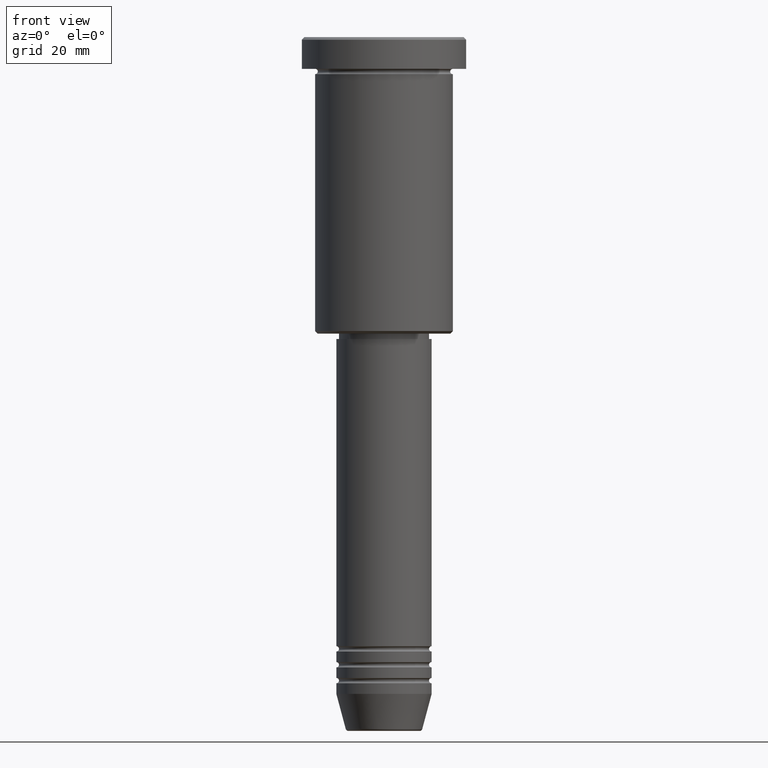
[diagram: clean part render]
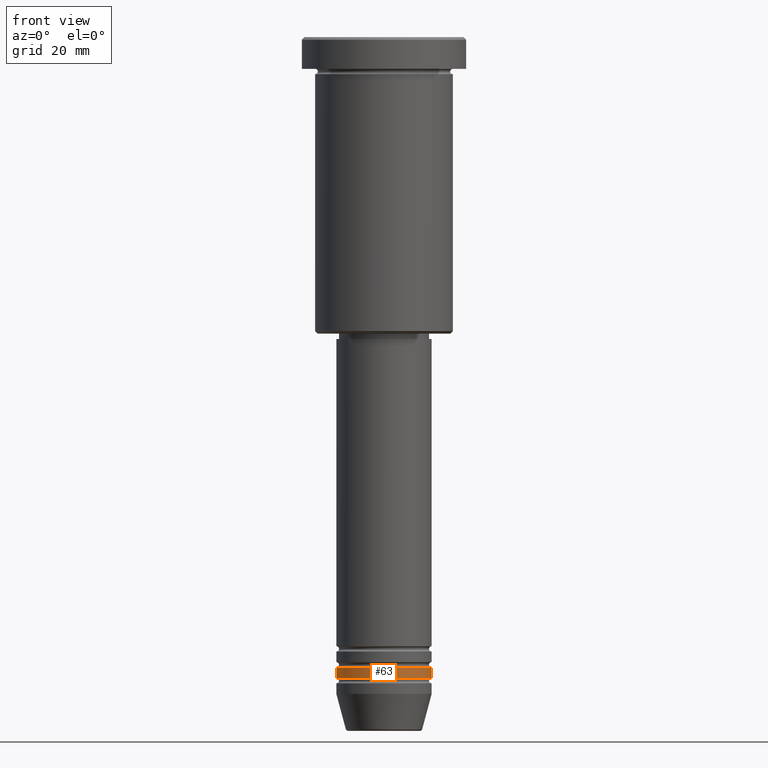
[diagram: same view with one face highlighted and labeled with its STEP entity id]
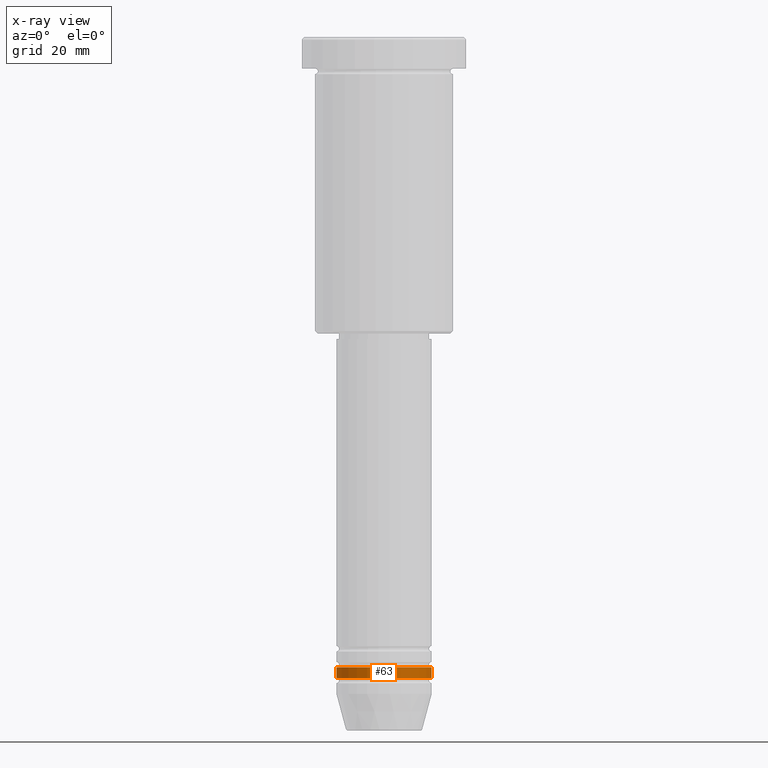
[diagram: x-ray of the same camera — body ghosted, the highlighted face saturated]
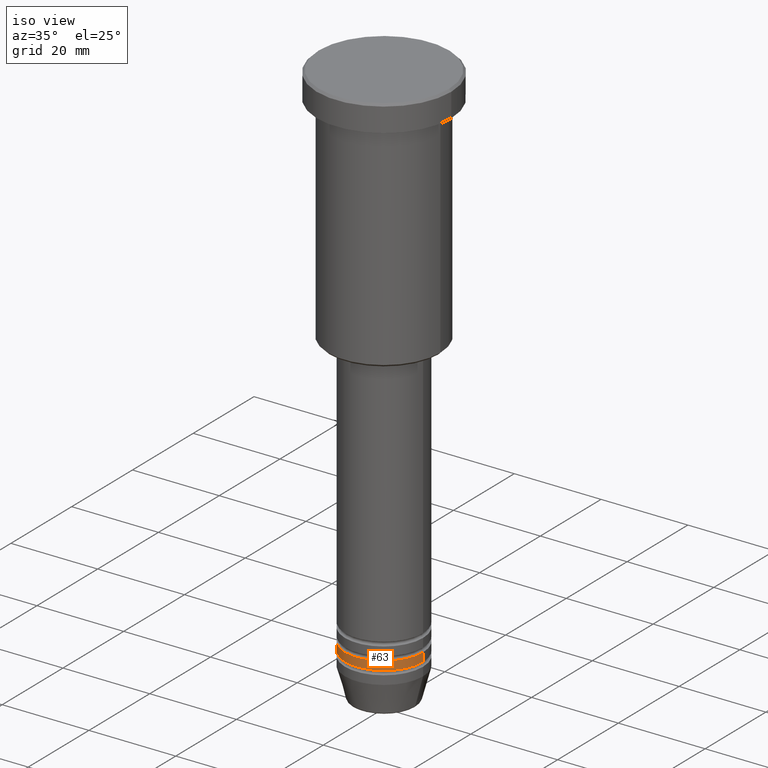
[diagram: same view with one face highlighted and labeled with its STEP entity id]
A machine part, front view. The second image highlights one B-rep face of the part: STEP entity #63.
The next image is the same camera in x-ray: the body ghosted, the highlighted face saturated — about 0% of this face is hidden behind the body in this view.
A second angle (iso view) of the same face is appended — the face is thin or edge-on in the first view.
In plain terms, the highlighted cylindrical surface (partial cylindrical patch) has radius 9 mm, axis along (-0, -0, 1).
Its self-contained STEP definition (entity closure, byte-faithful):
#2 = DIRECTION ( 'NONE',  ( 1.000000000000000000, 0.000000000000000000, 0.000000000000000000 ) ) ;
#17 = LINE ( 'NONE', #104, #1062 ) ;
#63 = ADVANCED_FACE ( 'NONE', ( #360 ), #809, .T. ) ;
#85 = DIRECTION ( 'NONE',  ( 1.000000000000000000, 0.000000000000000000, 0.000000000000000000 ) ) ;
#104 = CARTESIAN_POINT ( 'NONE',  ( -9.000000000000000000, 1.102182119232617714E-15, 0.000000000000000000 ) ) ;
#108 = DIRECTION ( 'NONE',  ( -0.000000000000000000, -0.000000000000000000, 1.000000000000000000 ) ) ;
#128 = VERTEX_POINT ( 'NONE', #636 ) ;
#197 = EDGE_CURVE ( 'NONE', #941, #128, #327, .T. ) ;
#199 = CARTESIAN_POINT ( 'NONE',  ( 9.000000000000000000, 0.000000000000000000, 0.000000000000000000 ) ) ;
#248 = AXIS2_PLACEMENT_3D ( 'NONE', #838, #935, #2 ) ;
#280 = EDGE_CURVE ( 'NONE', #128, #323, #824, .T. ) ;
#322 = EDGE_CURVE ( 'NONE', #398, #323, #454, .T. ) ;
#323 = VERTEX_POINT ( 'NONE', #687 ) ;
#327 = CIRCLE ( 'NONE', #248, 9.000000000000000000 ) ;
#360 = FACE_OUTER_BOUND ( 'NONE', #393, .T. ) ;
#393 = EDGE_LOOP ( 'NONE', ( #1130, #781, #1068, #730 ) ) ;
#398 = VERTEX_POINT ( 'NONE', #939 ) ;
#408 = CARTESIAN_POINT ( 'NONE',  ( -9.000000000000000000, 1.102182119232617714E-15, -120.9999999999999716 ) ) ;
#454 = CIRCLE ( 'NONE', #629, 9.000000000000000000 ) ;
#563 = DIRECTION ( 'NONE',  ( -0.000000000000000000, -0.000000000000000000, 1.000000000000000000 ) ) ;
#627 = AXIS2_PLACEMENT_3D ( 'NONE', #1071, #1066, #85 ) ;
#629 = AXIS2_PLACEMENT_3D ( 'NONE', #1038, #1138, #1048 ) ;
#636 = CARTESIAN_POINT ( 'NONE',  ( 9.000000000000000000, 0.000000000000000000, -120.9999999999999716 ) ) ;
#687 = CARTESIAN_POINT ( 'NONE',  ( 9.000000000000000000, 0.000000000000000000, -118.9999999999999858 ) ) ;
#730 = ORIENTED_EDGE ( 'NONE', *, *, #322, .F. ) ;
#753 = EDGE_CURVE ( 'NONE', #941, #398, #17, .T. ) ;
#781 = ORIENTED_EDGE ( 'NONE', *, *, #197, .T. ) ;
#809 = CYLINDRICAL_SURFACE ( 'NONE', #627, 9.000000000000000000 ) ;
#824 = LINE ( 'NONE', #199, #965 ) ;
#838 = CARTESIAN_POINT ( 'NONE',  ( 0.000000000000000000, 0.000000000000000000, -120.9999999999999716 ) ) ;
#935 = DIRECTION ( 'NONE',  ( -0.000000000000000000, -0.000000000000000000, 1.000000000000000000 ) ) ;
#939 = CARTESIAN_POINT ( 'NONE',  ( -9.000000000000000000, 1.102182119232617714E-15, -118.9999999999999858 ) ) ;
#941 = VERTEX_POINT ( 'NONE', #408 ) ;
#965 = VECTOR ( 'NONE', #108, 1000.000000000000000 ) ;
#1038 = CARTESIAN_POINT ( 'NONE',  ( 0.000000000000000000, 0.000000000000000000, -118.9999999999999858 ) ) ;
#1048 = DIRECTION ( 'NONE',  ( 1.000000000000000000, 0.000000000000000000, 0.000000000000000000 ) ) ;
#1062 = VECTOR ( 'NONE', #563, 1000.000000000000000 ) ;
#1066 = DIRECTION ( 'NONE',  ( -0.000000000000000000, -0.000000000000000000, 1.000000000000000000 ) ) ;
#1068 = ORIENTED_EDGE ( 'NONE', *, *, #280, .T. ) ;
#1071 = CARTESIAN_POINT ( 'NONE',  ( 0.000000000000000000, 0.000000000000000000, 0.000000000000000000 ) ) ;
#1130 = ORIENTED_EDGE ( 'NONE', *, *, #753, .F. ) ;
#1138 = DIRECTION ( 'NONE',  ( -0.000000000000000000, -0.000000000000000000, 1.000000000000000000 ) ) ;